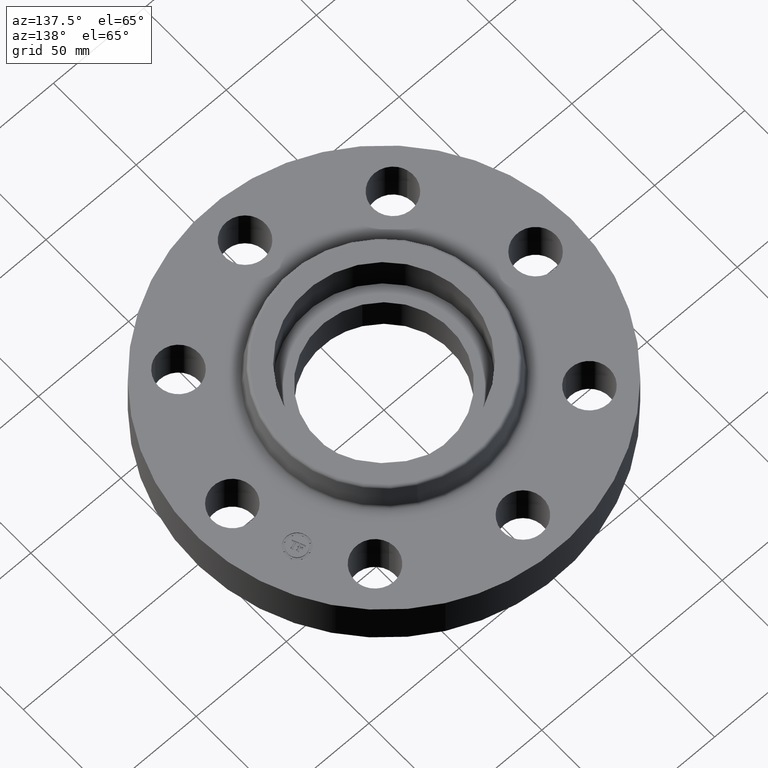
[diagram: clean part render]
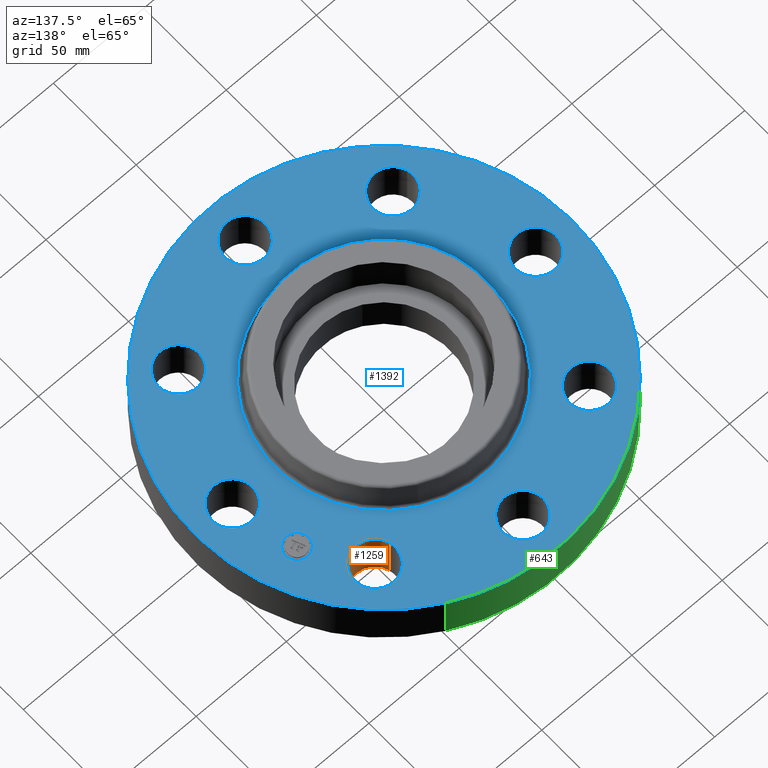
[diagram: same view with three faces highlighted in distinct colors, each labeled with its STEP entity id]
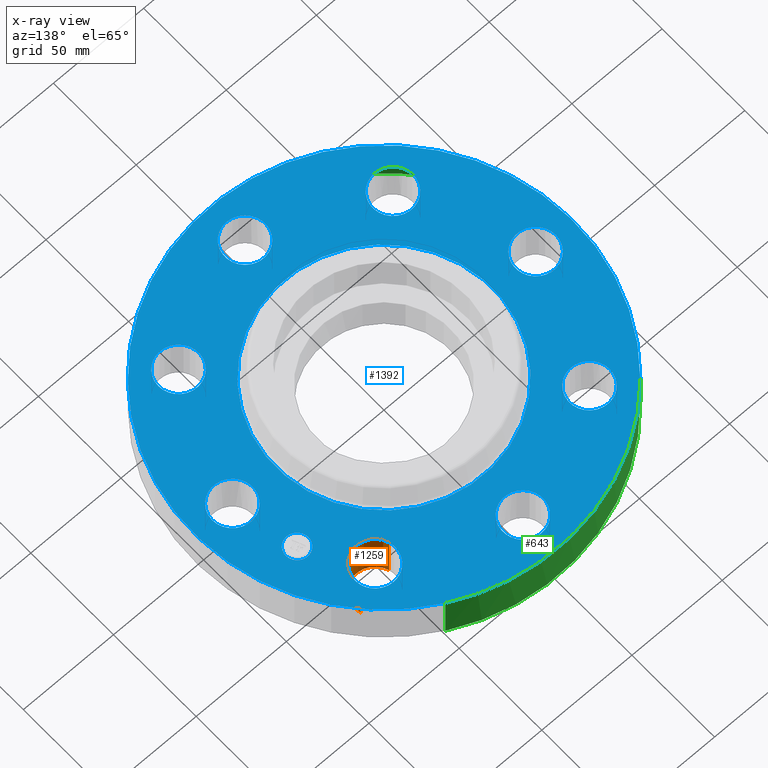
[diagram: x-ray of the same camera — body ghosted, the three highlighted faces saturated]
A machine part, auxiliary view with three faces highlighted in distinct colors.
The next image is the same camera in x-ray (body ghosted, the three faces saturated) — at least one of them is partly hidden behind the body in this view.
Their STEP definitions:

[orange] entity #1259 — the highlighted cylindrical surface (edge-blend (fillet) strip) has radius 11.176 mm, axis along (-0, 0, -1).
#524=AXIS2_PLACEMENT_3D('Circle Axis2P3D',#522,#523,$) ;
#1246=AXIS2_PLACEMENT_3D('Cylinder Axis2P3D',#1243,#1244,#1245) ;
#1250=AXIS2_PLACEMENT_3D('Circle Axis2P3D',#1248,#1249,$) ;
#517=CARTESIAN_POINT('Vertex',(1.91832160856,2.21664605201,0.)) ;
#519=CARTESIAN_POINT('Vertex',(2.76272528292,2.46440083948,0.)) ;
#522=CARTESIAN_POINT('Axis2P3D Location',(2.34052344574,2.34052344574,0.)) ;
#1198=CARTESIAN_POINT('Line Origine',(1.91832160854,2.21664605204,0.529999999983)) ;
#1202=CARTESIAN_POINT('Vertex',(1.91832160855,2.21664605203,1.05999999999)) ;
#1205=CARTESIAN_POINT('Line Origine',(2.76272528294,2.46440083944,0.529999999983)) ;
#1209=CARTESIAN_POINT('Vertex',(2.76272528294,2.46440083944,1.05999999999)) ;
#1243=CARTESIAN_POINT('Axis2P3D Location',(2.34052344574,2.34052344574,1.05606299213)) ;
#1248=CARTESIAN_POINT('Axis2P3D Location',(2.34052344574,2.34052344574,1.05999999999)) ;
#523=DIRECTION('Axis2P3D Direction',(0.,0.,-0.0393700787402)) ;
#1199=DIRECTION('Vector Direction',(0.,0.,-0.0393700787402)) ;
#1206=DIRECTION('Vector Direction',(0.,0.,-0.0393700787402)) ;
#1244=DIRECTION('Axis2P3D Direction',(-0.,0.,-0.0393700787402)) ;
#1245=DIRECTION('Axis2P3D XDirection',(0.0377775444876,0.0110842335096,0.)) ;
#1249=DIRECTION('Axis2P3D Direction',(-0.,0.,-0.0393700787402)) ;
#1200=VECTOR('Line Direction',#1199,0.0393700787402) ;
#1207=VECTOR('Line Direction',#1206,0.0393700787402) ;
#1254=ORIENTED_EDGE('',*,*,#1211,.F.) ;
#1255=ORIENTED_EDGE('',*,*,#526,.T.) ;
#1256=ORIENTED_EDGE('',*,*,#1204,.T.) ;
#1257=ORIENTED_EDGE('',*,*,#1252,.F.) ;
#1259=ADVANCED_FACE('PartBody',(#1258),#1247,.F.) ;
#525=CIRCLE('generated circle',#524,0.439999999995) ;
#1251=CIRCLE('generated circle',#1250,0.440000000002) ;
#1247=CYLINDRICAL_SURFACE('generated cylinder',#1246,0.440000000002) ;
#526=EDGE_CURVE('',#520,#518,#525,.T.) ;
#1204=EDGE_CURVE('',#518,#1203,#1201,.F.) ;
#1211=EDGE_CURVE('',#520,#1210,#1208,.F.) ;
#1252=EDGE_CURVE('',#1210,#1203,#1251,.T.) ;
#1253=EDGE_LOOP('',(#1254,#1255,#1256,#1257)) ;
#1258=FACE_OUTER_BOUND('',#1253,.T.) ;
#1201=LINE('Line',#1198,#1200) ;
#1208=LINE('Line',#1205,#1207) ;
#518=VERTEX_POINT('',#517) ;
#520=VERTEX_POINT('',#519) ;
#1203=VERTEX_POINT('',#1202) ;
#1210=VERTEX_POINT('',#1209) ;

[blue] entity #1392 — the highlighted planar face has unit normal (0, 0, -1).
#658=AXIS2_PLACEMENT_3D('Circle Axis2P3D',#656,#657,$) ;
#732=AXIS2_PLACEMENT_3D('Circle Axis2P3D',#730,#731,$) ;
#806=AXIS2_PLACEMENT_3D('Circle Axis2P3D',#804,#805,$) ;
#844=AXIS2_PLACEMENT_3D('Circle Axis2P3D',#842,#843,$) ;
#954=AXIS2_PLACEMENT_3D('Circle Axis2P3D',#952,#953,$) ;
#992=AXIS2_PLACEMENT_3D('Circle Axis2P3D',#990,#991,$) ;
#1102=AXIS2_PLACEMENT_3D('Circle Axis2P3D',#1100,#1101,$) ;
#1140=AXIS2_PLACEMENT_3D('Circle Axis2P3D',#1138,#1139,$) ;
#1250=AXIS2_PLACEMENT_3D('Circle Axis2P3D',#1248,#1249,$) ;
#1274=AXIS2_PLACEMENT_3D('Circle Axis2P3D',#1272,#1273,$) ;
#1312=AXIS2_PLACEMENT_3D('Circle Axis2P3D',#1310,#1311,$) ;
#1332=AXIS2_PLACEMENT_3D('Plane Axis2P3D',#1329,#1330,#1331) ;
#1376=AXIS2_PLACEMENT_3D('Circle Axis2P3D',#1374,#1375,$) ;
#1385=AXIS2_PLACEMENT_3D('Circle Axis2P3D',#1383,#1384,$) ;
#610=CARTESIAN_POINT('Vertex',(-1.97763034675,-3.62002806781,1.05999999998)) ;
#614=CARTESIAN_POINT('Control Point',(-1.97763034675,-3.62002806781,1.06)) ;
#615=CARTESIAN_POINT('Control Point',(-2.54626302594,-3.30938261937,1.06)) ;
#616=CARTESIAN_POINT('Control Point',(-3.05390061395,-2.88708640546,1.06)) ;
#617=CARTESIAN_POINT('Control Point',(-3.47121412711,-2.36901864835,1.06)) ;
#618=CARTESIAN_POINT('Control Point',(-4.08022127968,-1.19716953677,1.05999999999)) ;
#619=CARTESIAN_POINT('Control Point',(-4.20091220836,0.117955458021,1.05999999999)) ;
#620=CARTESIAN_POINT('Control Point',(-4.12966819923,0.779369897221,1.05999999999)) ;
#621=CARTESIAN_POINT('Control Point',(-3.73167883328,2.03862543792,1.05999999999)) ;
#622=CARTESIAN_POINT('Control Point',(-2.88708640546,3.05390061395,1.05999999999)) ;
#623=CARTESIAN_POINT('Control Point',(-2.36901864835,3.47121412711,1.05999999998)) ;
#624=CARTESIAN_POINT('Control Point',(-1.19716953677,4.08022127968,1.05999999998)) ;
#625=CARTESIAN_POINT('Control Point',(0.117955458021,4.20091220836,1.05999999998)) ;
#626=CARTESIAN_POINT('Control Point',(0.77936989722,4.12966819923,1.05999999998)) ;
#627=CARTESIAN_POINT('Control Point',(1.40899766757,3.93067351626,1.05999999998)) ;
#628=CARTESIAN_POINT('Control Point',(1.97763034675,3.62002806781,1.05999999998)) ;
#629=CARTESIAN_POINT('Vertex',(1.97763034678,3.62002806783,1.06)) ;
#656=CARTESIAN_POINT('Axis2P3D Location',(0.,0.,1.05999999998)) ;
#684=CARTESIAN_POINT('Vertex',(3.69613632724,-0.210947236984,1.05999999999)) ;
#691=CARTESIAN_POINT('Vertex',(2.92386367278,0.210947236987,1.05999999999)) ;
#695=CARTESIAN_POINT('Control Point',(3.69613632724,-0.210947236987,1.05999999999)) ;
#696=CARTESIAN_POINT('Control Point',(3.66300081274,-0.271601389433,1.05999999999)) ;
#697=CARTESIAN_POINT('Control Point',(3.61795588326,-0.325749398821,1.05999999999)) ;
#698=CARTESIAN_POINT('Control Point',(3.5626953225,-0.370262840224,1.05999999999)) ;
#699=CARTESIAN_POINT('Control Point',(3.43769808393,-0.435223603166,1.05999999999)) ;
#700=CARTESIAN_POINT('Control Point',(3.29741808449,-0.448097302225,1.05999999999)) ;
#701=CARTESIAN_POINT('Control Point',(3.22686721097,-0.440497941251,1.05999999999)) ;
#702=CARTESIAN_POINT('Control Point',(3.09254661997,-0.398045742217,1.05999999999)) ;
#703=CARTESIAN_POINT('Control Point',(2.98425060119,-0.307955883249,1.06)) ;
#704=CARTESIAN_POINT('Control Point',(2.93973715979,-0.252695322491,1.06)) ;
#705=CARTESIAN_POINT('Control Point',(2.87477639684,-0.127698083922,1.06)) ;
#706=CARTESIAN_POINT('Control Point',(2.86190269778,0.0125819155223,1.06)) ;
#707=CARTESIAN_POINT('Control Point',(2.86950205876,0.0831327890369,1.06)) ;
#708=CARTESIAN_POINT('Control Point',(2.89072815828,0.150293084541,1.06)) ;
#709=CARTESIAN_POINT('Control Point',(2.92386367278,0.210947236987,1.06)) ;
#730=CARTESIAN_POINT('Axis2P3D Location',(3.31000000001,0.,1.05999999999)) ;
#758=CARTESIAN_POINT('Vertex',(2.21664605203,-1.91832160855,1.05999999999)) ;
#765=CARTESIAN_POINT('Vertex',(2.46440083944,-2.76272528294,1.05999999999)) ;
#769=CARTESIAN_POINT('Control Point',(2.21664605204,-1.91832160854,1.05999999999)) ;
#770=CARTESIAN_POINT('Control Point',(2.28296536154,-1.89886299304,1.05999999999)) ;
#771=CARTESIAN_POINT('Control Point',(2.35310536126,-1.89242614351,1.05999999999)) ;
#772=CARTESIAN_POINT('Control Point',(2.42365623478,-1.90002550449,1.05999999999)) ;
#773=CARTESIAN_POINT('Control Point',(2.55797682578,-1.94247770352,1.05999999999)) ;
#774=CARTESIAN_POINT('Control Point',(2.66627284456,-2.03256756249,1.05999999999)) ;
#775=CARTESIAN_POINT('Control Point',(2.71078628596,-2.08782812325,1.05999999999)) ;
#776=CARTESIAN_POINT('Control Point',(2.77574704891,-2.21282536182,1.05999999999)) ;
#777=CARTESIAN_POINT('Control Point',(2.78862074797,-2.35310536126,1.06)) ;
#778=CARTESIAN_POINT('Control Point',(2.78102138699,-2.42365623478,1.06)) ;
#779=CARTESIAN_POINT('Control Point',(2.73856918796,-2.55797682578,1.06)) ;
#780=CARTESIAN_POINT('Control Point',(2.64847932899,-2.66627284456,1.06)) ;
#781=CARTESIAN_POINT('Control Point',(2.59321876823,-2.71078628596,1.06)) ;
#782=CARTESIAN_POINT('Control Point',(2.53072014895,-2.74326666743,1.06)) ;
#783=CARTESIAN_POINT('Control Point',(2.46440083944,-2.76272528294,1.06)) ;
#804=CARTESIAN_POINT('Axis2P3D Location',(2.34052344574,-2.34052344574,1.05999999999)) ;
#832=CARTESIAN_POINT('Vertex',(0.210947237,-2.92386367279,1.06)) ;
#839=CARTESIAN_POINT('Vertex',(-0.210947236987,-3.69613632724,1.05999999999)) ;
#842=CARTESIAN_POINT('Axis2P3D Location',(-3.56803423843E-016,-3.31000000001,1.05999999999)) ;
#867=CARTESIAN_POINT('Control Point',(-0.210947236987,-3.69613632724,1.06)) ;
#868=CARTESIAN_POINT('Control Point',(-0.271601389433,-3.66300081274,1.06)) ;
#869=CARTESIAN_POINT('Control Point',(-0.325749398821,-3.61795588326,1.06)) ;
#870=CARTESIAN_POINT('Control Point',(-0.370262840224,-3.5626953225,1.06)) ;
#871=CARTESIAN_POINT('Control Point',(-0.435223603166,-3.43769808393,1.06)) ;
#872=CARTESIAN_POINT('Control Point',(-0.448097302225,-3.29741808449,1.06)) ;
#873=CARTESIAN_POINT('Control Point',(-0.440497941251,-3.22686721097,1.06)) ;
#874=CARTESIAN_POINT('Control Point',(-0.398045742217,-3.09254661997,1.05999999999)) ;
#875=CARTESIAN_POINT('Control Point',(-0.307955883249,-2.98425060119,1.05999999999)) ;
#876=CARTESIAN_POINT('Control Point',(-0.252695322491,-2.93973715979,1.05999999999)) ;
#877=CARTESIAN_POINT('Control Point',(-0.127698083922,-2.87477639684,1.05999999999)) ;
#878=CARTESIAN_POINT('Control Point',(0.0125819155223,-2.86190269778,1.05999999999)) ;
#879=CARTESIAN_POINT('Control Point',(0.0831327890369,-2.86950205876,1.05999999999)) ;
#880=CARTESIAN_POINT('Control Point',(0.150293084541,-2.89072815828,1.05999999999)) ;
#881=CARTESIAN_POINT('Control Point',(0.210947236987,-2.92386367278,1.05999999999)) ;
#906=CARTESIAN_POINT('Vertex',(-1.91832160855,-2.21664605203,1.05999999999)) ;
#913=CARTESIAN_POINT('Vertex',(-2.76272528294,-2.46440083944,1.05999999999)) ;
#917=CARTESIAN_POINT('Control Point',(-1.91832160854,-2.21664605204,1.05999999999)) ;
#918=CARTESIAN_POINT('Control Point',(-1.89886299304,-2.28296536154,1.05999999999)) ;
#919=CARTESIAN_POINT('Control Point',(-1.89242614351,-2.35310536126,1.05999999999)) ;
#920=CARTESIAN_POINT('Control Point',(-1.90002550449,-2.42365623478,1.05999999999)) ;
#921=CARTESIAN_POINT('Control Point',(-1.94247770352,-2.55797682578,1.05999999999)) ;
#922=CARTESIAN_POINT('Control Point',(-2.03256756249,-2.66627284456,1.05999999999)) ;
#923=CARTESIAN_POINT('Control Point',(-2.08782812325,-2.71078628596,1.05999999999)) ;
#924=CARTESIAN_POINT('Control Point',(-2.21282536182,-2.77574704891,1.05999999999)) ;
#925=CARTESIAN_POINT('Control Point',(-2.35310536126,-2.78862074797,1.06)) ;
#926=CARTESIAN_POINT('Control Point',(-2.42365623478,-2.78102138699,1.06)) ;
#927=CARTESIAN_POINT('Control Point',(-2.55797682578,-2.73856918796,1.06)) ;
#928=CARTESIAN_POINT('Control Point',(-2.66627284456,-2.64847932899,1.06)) ;
#929=CARTESIAN_POINT('Control Point',(-2.71078628596,-2.59321876823,1.06)) ;
#930=CARTESIAN_POINT('Control Point',(-2.74326666743,-2.53072014895,1.06)) ;
#931=CARTESIAN_POINT('Control Point',(-2.76272528294,-2.46440083944,1.06)) ;
#952=CARTESIAN_POINT('Axis2P3D Location',(-2.34052344574,-2.34052344574,1.05999999999)) ;
#980=CARTESIAN_POINT('Vertex',(-2.92386367279,-0.210947236994,1.06)) ;
#987=CARTESIAN_POINT('Vertex',(-3.69613632724,0.210947236987,1.05999999999)) ;
#990=CARTESIAN_POINT('Axis2P3D Location',(-3.31000000001,-4.05358090519E-016,1.05999999999)) ;
#1015=CARTESIAN_POINT('Control Point',(-3.69613632724,0.210947236987,1.06)) ;
#1016=CARTESIAN_POINT('Control Point',(-3.66300081274,0.271601389433,1.06)) ;
#1017=CARTESIAN_POINT('Control Point',(-3.61795588326,0.325749398821,1.06)) ;
#1018=CARTESIAN_POINT('Control Point',(-3.5626953225,0.370262840224,1.06)) ;
#1019=CARTESIAN_POINT('Control Point',(-3.43769808393,0.435223603166,1.06)) ;
#1020=CARTESIAN_POINT('Control Point',(-3.29741808449,0.448097302225,1.06)) ;
#1021=CARTESIAN_POINT('Control Point',(-3.22686721097,0.440497941251,1.06)) ;
#1022=CARTESIAN_POINT('Control Point',(-3.09254661997,0.398045742217,1.05999999999)) ;
#1023=CARTESIAN_POINT('Control Point',(-2.98425060119,0.307955883249,1.05999999999)) ;
#1024=CARTESIAN_POINT('Control Point',(-2.93973715979,0.252695322491,1.05999999999)) ;
#1025=CARTESIAN_POINT('Control Point',(-2.87477639684,0.127698083922,1.05999999999)) ;
#1026=CARTESIAN_POINT('Control Point',(-2.86190269778,-0.0125819155223,1.05999999999)) ;
#1027=CARTESIAN_POINT('Control Point',(-2.86950205876,-0.0831327890369,1.05999999999)) ;
#1028=CARTESIAN_POINT('Control Point',(-2.89072815828,-0.150293084541,1.05999999999)) ;
#1029=CARTESIAN_POINT('Control Point',(-2.92386367278,-0.210947236987,1.05999999999)) ;
#1054=CARTESIAN_POINT('Vertex',(-2.21664605203,1.91832160855,1.05999999999)) ;
#1061=CARTESIAN_POINT('Vertex',(-2.46440083944,2.76272528294,1.05999999999)) ;
#1065=CARTESIAN_POINT('Control Point',(-2.21664605204,1.91832160854,1.05999999999)) ;
#1066=CARTESIAN_POINT('Control Point',(-2.28296536154,1.89886299304,1.05999999999)) ;
#1067=CARTESIAN_POINT('Control Point',(-2.35310536126,1.89242614351,1.05999999999)) ;
#1068=CARTESIAN_POINT('Control Point',(-2.42365623478,1.90002550449,1.05999999999)) ;
#1069=CARTESIAN_POINT('Control Point',(-2.55797682578,1.94247770352,1.05999999999)) ;
#1070=CARTESIAN_POINT('Control Point',(-2.66627284456,2.03256756249,1.05999999999)) ;
#1071=CARTESIAN_POINT('Control Point',(-2.71078628596,2.08782812325,1.05999999999)) ;
#1072=CARTESIAN_POINT('Control Point',(-2.77574704891,2.21282536182,1.05999999999)) ;
#1073=CARTESIAN_POINT('Control Point',(-2.78862074797,2.35310536126,1.06)) ;
#1074=CARTESIAN_POINT('Control Point',(-2.78102138699,2.42365623478,1.06)) ;
#1075=CARTESIAN_POINT('Control Point',(-2.73856918796,2.55797682578,1.06)) ;
#1076=CARTESIAN_POINT('Control Point',(-2.64847932899,2.66627284456,1.06)) ;
#1077=CARTESIAN_POINT('Control Point',(-2.59321876823,2.71078628596,1.06)) ;
#1078=CARTESIAN_POINT('Control Point',(-2.53072014895,2.74326666743,1.06)) ;
#1079=CARTESIAN_POINT('Control Point',(-2.46440083944,2.76272528294,1.06)) ;
#1100=CARTESIAN_POINT('Axis2P3D Location',(-2.34052344574,2.34052344574,1.05999999999)) ;
#1128=CARTESIAN_POINT('Vertex',(-0.210947237,2.9238636728,1.06)) ;
#1135=CARTESIAN_POINT('Vertex',(0.210947236987,3.69613632724,1.05999999999)) ;
#1138=CARTESIAN_POINT('Axis2P3D Location',(-6.08037135779E-016,3.31000000001,1.05999999999)) ;
#1163=CARTESIAN_POINT('Control Point',(0.210947236987,3.69613632724,1.06)) ;
#1164=CARTESIAN_POINT('Control Point',(0.271601389433,3.66300081274,1.06)) ;
#1165=CARTESIAN_POINT('Control Point',(0.325749398821,3.61795588326,1.06)) ;
#1166=CARTESIAN_POINT('Control Point',(0.370262840224,3.5626953225,1.06)) ;
#1167=CARTESIAN_POINT('Control Point',(0.435223603166,3.43769808393,1.06)) ;
#1168=CARTESIAN_POINT('Control Point',(0.448097302225,3.29741808449,1.06)) ;
#1169=CARTESIAN_POINT('Control Point',(0.440497941251,3.22686721097,1.06)) ;
#1170=CARTESIAN_POINT('Control Point',(0.398045742217,3.09254661997,1.05999999999)) ;
#1171=CARTESIAN_POINT('Control Point',(0.307955883249,2.98425060119,1.05999999999)) ;
#1172=CARTESIAN_POINT('Control Point',(0.252695322491,2.93973715979,1.05999999999)) ;
#1173=CARTESIAN_POINT('Control Point',(0.127698083922,2.87477639684,1.05999999999)) ;
#1174=CARTESIAN_POINT('Control Point',(-0.0125819155223,2.86190269778,1.05999999999)) ;
#1175=CARTESIAN_POINT('Control Point',(-0.0831327890369,2.86950205876,1.05999999999)) ;
#1176=CARTESIAN_POINT('Control Point',(-0.150293084541,2.89072815828,1.05999999999)) ;
#1177=CARTESIAN_POINT('Control Point',(-0.210947236987,2.92386367278,1.05999999999)) ;
#1202=CARTESIAN_POINT('Vertex',(1.91832160855,2.21664605203,1.05999999999)) ;
#1209=CARTESIAN_POINT('Vertex',(2.76272528294,2.46440083944,1.05999999999)) ;
#1213=CARTESIAN_POINT('Control Point',(1.91832160854,2.21664605204,1.05999999999)) ;
#1214=CARTESIAN_POINT('Control Point',(1.89886299304,2.28296536154,1.05999999999)) ;
#1215=CARTESIAN_POINT('Control Point',(1.89242614351,2.35310536126,1.05999999999)) ;
#1216=CARTESIAN_POINT('Control Point',(1.90002550449,2.42365623478,1.05999999999)) ;
#1217=CARTESIAN_POINT('Control Point',(1.94247770352,2.55797682578,1.05999999999)) ;
#1218=CARTESIAN_POINT('Control Point',(2.03256756249,2.66627284456,1.05999999999)) ;
#1219=CARTESIAN_POINT('Control Point',(2.08782812325,2.71078628596,1.05999999999)) ;
#1220=CARTESIAN_POINT('Control Point',(2.21282536182,2.77574704891,1.05999999999)) ;
#1221=CARTESIAN_POINT('Control Point',(2.35310536126,2.78862074797,1.06)) ;
#1222=CARTESIAN_POINT('Control Point',(2.42365623478,2.78102138699,1.06)) ;
#1223=CARTESIAN_POINT('Control Point',(2.55797682578,2.73856918796,1.06)) ;
#1224=CARTESIAN_POINT('Control Point',(2.66627284456,2.64847932899,1.06)) ;
#1225=CARTESIAN_POINT('Control Point',(2.71078628596,2.59321876823,1.06)) ;
#1226=CARTESIAN_POINT('Control Point',(2.74326666743,2.53072014895,1.06)) ;
#1227=CARTESIAN_POINT('Control Point',(2.76272528294,2.46440083944,1.06)) ;
#1248=CARTESIAN_POINT('Axis2P3D Location',(2.34052344574,2.34052344574,1.05999999999)) ;
#1272=CARTESIAN_POINT('Axis2P3D Location',(0.,0.,1.06)) ;
#1276=CARTESIAN_POINT('Vertex',(1.13161014174,2.07139847022,1.06)) ;
#1278=CARTESIAN_POINT('Vertex',(-1.13161014174,-2.07139847022,1.06)) ;
#1310=CARTESIAN_POINT('Axis2P3D Location',(0.,0.,1.06)) ;
#1329=CARTESIAN_POINT('Axis2P3D Location',(0.,4.12500000002,1.06)) ;
#1374=CARTESIAN_POINT('Axis2P3D Location',(3.05804125264,1.26668216115,1.06)) ;
#1378=CARTESIAN_POINT('Vertex',(2.96332710313,1.49534234543,1.06)) ;
#1380=CARTESIAN_POINT('Vertex',(3.15275540216,1.03802197687,1.06)) ;
#1383=CARTESIAN_POINT('Axis2P3D Location',(3.05804125258,1.26668216112,1.06)) ;
#657=DIRECTION('Axis2P3D Direction',(0.,0.,-0.0393700787402)) ;
#731=DIRECTION('Axis2P3D Direction',(0.,-0.,-0.0393700787402)) ;
#805=DIRECTION('Axis2P3D Direction',(0.,0.,-0.0393700787402)) ;
#843=DIRECTION('Axis2P3D Direction',(0.,0.,-0.0393700787402)) ;
#953=DIRECTION('Axis2P3D Direction',(-0.,0.,-0.0393700787402)) ;
#991=DIRECTION('Axis2P3D Direction',(0.,-0.,-0.0393700787402)) ;
#1101=DIRECTION('Axis2P3D Direction',(0.,0.,-0.0393700787402)) ;
#1139=DIRECTION('Axis2P3D Direction',(-0.,0.,-0.0393700787402)) ;
#1249=DIRECTION('Axis2P3D Direction',(-0.,0.,-0.0393700787402)) ;
#1273=DIRECTION('Axis2P3D Direction',(-0.,0.,-0.0393700787402)) ;
#1311=DIRECTION('Axis2P3D Direction',(-0.,0.,-0.0393700787402)) ;
#1330=DIRECTION('Axis2P3D Direction',(0.,0.,-0.0393700787402)) ;
#1331=DIRECTION('Axis2P3D XDirection',(0.0393700787402,0.,0.)) ;
#1375=DIRECTION('Axis2P3D Direction',(0.,0.,-0.0393700787402)) ;
#1384=DIRECTION('Axis2P3D Direction',(0.,0.,-0.0393700787402)) ;
#1335=ORIENTED_EDGE('',*,*,#660,.F.) ;
#1336=ORIENTED_EDGE('',*,*,#631,.F.) ;
#1339=ORIENTED_EDGE('',*,*,#734,.T.) ;
#1340=ORIENTED_EDGE('',*,*,#710,.T.) ;
#1343=ORIENTED_EDGE('',*,*,#1314,.T.) ;
#1344=ORIENTED_EDGE('',*,*,#1280,.T.) ;
#1347=ORIENTED_EDGE('',*,*,#808,.T.) ;
#1348=ORIENTED_EDGE('',*,*,#784,.T.) ;
#1351=ORIENTED_EDGE('',*,*,#882,.T.) ;
#1352=ORIENTED_EDGE('',*,*,#846,.T.) ;
#1355=ORIENTED_EDGE('',*,*,#956,.T.) ;
#1356=ORIENTED_EDGE('',*,*,#932,.T.) ;
#1359=ORIENTED_EDGE('',*,*,#1030,.T.) ;
#1360=ORIENTED_EDGE('',*,*,#994,.T.) ;
#1363=ORIENTED_EDGE('',*,*,#1104,.T.) ;
#1364=ORIENTED_EDGE('',*,*,#1080,.T.) ;
#1367=ORIENTED_EDGE('',*,*,#1178,.T.) ;
#1368=ORIENTED_EDGE('',*,*,#1142,.T.) ;
#1371=ORIENTED_EDGE('',*,*,#1252,.T.) ;
#1372=ORIENTED_EDGE('',*,*,#1228,.T.) ;
#1389=ORIENTED_EDGE('',*,*,#1382,.T.) ;
#1390=ORIENTED_EDGE('',*,*,#1387,.T.) ;
#1341=FACE_BOUND('',#1338,.T.) ;
#1345=FACE_BOUND('',#1342,.T.) ;
#1349=FACE_BOUND('',#1346,.T.) ;
#1353=FACE_BOUND('',#1350,.T.) ;
#1357=FACE_BOUND('',#1354,.T.) ;
#1361=FACE_BOUND('',#1358,.T.) ;
#1365=FACE_BOUND('',#1362,.T.) ;
#1369=FACE_BOUND('',#1366,.T.) ;
#1373=FACE_BOUND('',#1370,.T.) ;
#1391=FACE_BOUND('',#1388,.T.) ;
#1392=ADVANCED_FACE('PartBody',(#1337,#1341,#1345,#1349,#1353,#1357,#1361,#1365,#1369,#1373,#1391),#1333,.F.) ;
#613=B_SPLINE_CURVE_WITH_KNOTS('',5,(#614,#615,#616,#617,#618,#619,#620,#621,#622,#623,#624,#625,#626,#627,#628),.UNSPECIFIED.,.F.,.U.,(6,3,3,3,6),(-164.580185141,-82.2900925704,0.,82.2900925704,164.580185141),.UNSPECIFIED.) ;
#694=B_SPLINE_CURVE_WITH_KNOTS('',5,(#695,#696,#697,#698,#699,#700,#701,#702,#703,#704,#705,#706,#707,#708,#709),.UNSPECIFIED.,.F.,.U.,(6,3,3,3,6),(-17.5552197483,-8.77760987417,0.,8.77760987417,17.5552197483),.UNSPECIFIED.) ;
#768=B_SPLINE_CURVE_WITH_KNOTS('',5,(#769,#770,#771,#772,#773,#774,#775,#776,#777,#778,#779,#780,#781,#782,#783),.UNSPECIFIED.,.F.,.U.,(6,3,3,3,6),(-17.5552197483,-8.77760987417,0.,8.77760987417,17.5552197483),.UNSPECIFIED.) ;
#866=B_SPLINE_CURVE_WITH_KNOTS('',5,(#867,#868,#869,#870,#871,#872,#873,#874,#875,#876,#877,#878,#879,#880,#881),.UNSPECIFIED.,.F.,.U.,(6,3,3,3,6),(-17.5552197483,-8.77760987417,0.,8.77760987417,17.5552197483),.UNSPECIFIED.) ;
#916=B_SPLINE_CURVE_WITH_KNOTS('',5,(#917,#918,#919,#920,#921,#922,#923,#924,#925,#926,#927,#928,#929,#930,#931),.UNSPECIFIED.,.F.,.U.,(6,3,3,3,6),(-17.5552197483,-8.77760987417,0.,8.77760987417,17.5552197483),.UNSPECIFIED.) ;
#1014=B_SPLINE_CURVE_WITH_KNOTS('',5,(#1015,#1016,#1017,#1018,#1019,#1020,#1021,#1022,#1023,#1024,#1025,#1026,#1027,#1028,#1029),.UNSPECIFIED.,.F.,.U.,(6,3,3,3,6),(-17.5552197483,-8.77760987417,0.,8.77760987417,17.5552197483),.UNSPECIFIED.) ;
#1064=B_SPLINE_CURVE_WITH_KNOTS('',5,(#1065,#1066,#1067,#1068,#1069,#1070,#1071,#1072,#1073,#1074,#1075,#1076,#1077,#1078,#1079),.UNSPECIFIED.,.F.,.U.,(6,3,3,3,6),(-17.5552197483,-8.77760987417,0.,8.77760987417,17.5552197483),.UNSPECIFIED.) ;
#1162=B_SPLINE_CURVE_WITH_KNOTS('',5,(#1163,#1164,#1165,#1166,#1167,#1168,#1169,#1170,#1171,#1172,#1173,#1174,#1175,#1176,#1177),.UNSPECIFIED.,.F.,.U.,(6,3,3,3,6),(-17.5552197483,-8.77760987417,0.,8.77760987417,17.5552197483),.UNSPECIFIED.) ;
#1212=B_SPLINE_CURVE_WITH_KNOTS('',5,(#1213,#1214,#1215,#1216,#1217,#1218,#1219,#1220,#1221,#1222,#1223,#1224,#1225,#1226,#1227),.UNSPECIFIED.,.F.,.U.,(6,3,3,3,6),(-17.5552197483,-8.77760987417,0.,8.77760987417,17.5552197483),.UNSPECIFIED.) ;
#659=CIRCLE('generated circle',#658,4.12500000002) ;
#733=CIRCLE('generated circle',#732,0.440000000002) ;
#807=CIRCLE('generated circle',#806,0.440000000002) ;
#845=CIRCLE('generated circle',#844,0.440000000002) ;
#955=CIRCLE('generated circle',#954,0.440000000002) ;
#993=CIRCLE('generated circle',#992,0.440000000002) ;
#1103=CIRCLE('generated circle',#1102,0.440000000002) ;
#1141=CIRCLE('generated circle',#1140,0.440000000002) ;
#1251=CIRCLE('generated circle',#1250,0.440000000002) ;
#1275=CIRCLE('generated circle',#1274,2.36034597788) ;
#1313=CIRCLE('generated circle',#1312,2.36034597788) ;
#1377=CIRCLE('generated circle',#1376,0.247499999989) ;
#1386=CIRCLE('generated circle',#1385,0.247499999989) ;
#631=EDGE_CURVE('',#611,#630,#613,.T.) ;
#660=EDGE_CURVE('',#630,#611,#659,.T.) ;
#710=EDGE_CURVE('',#685,#692,#694,.T.) ;
#734=EDGE_CURVE('',#692,#685,#733,.T.) ;
#784=EDGE_CURVE('',#759,#766,#768,.T.) ;
#808=EDGE_CURVE('',#766,#759,#807,.T.) ;
#846=EDGE_CURVE('',#833,#840,#845,.T.) ;
#882=EDGE_CURVE('',#840,#833,#866,.T.) ;
#932=EDGE_CURVE('',#907,#914,#916,.T.) ;
#956=EDGE_CURVE('',#914,#907,#955,.T.) ;
#994=EDGE_CURVE('',#981,#988,#993,.T.) ;
#1030=EDGE_CURVE('',#988,#981,#1014,.T.) ;
#1080=EDGE_CURVE('',#1055,#1062,#1064,.T.) ;
#1104=EDGE_CURVE('',#1062,#1055,#1103,.T.) ;
#1142=EDGE_CURVE('',#1129,#1136,#1141,.T.) ;
#1178=EDGE_CURVE('',#1136,#1129,#1162,.T.) ;
#1228=EDGE_CURVE('',#1203,#1210,#1212,.T.) ;
#1252=EDGE_CURVE('',#1210,#1203,#1251,.T.) ;
#1280=EDGE_CURVE('',#1277,#1279,#1275,.T.) ;
#1314=EDGE_CURVE('',#1279,#1277,#1313,.T.) ;
#1382=EDGE_CURVE('',#1379,#1381,#1377,.T.) ;
#1387=EDGE_CURVE('',#1381,#1379,#1386,.T.) ;
#1334=EDGE_LOOP('',(#1335,#1336)) ;
#1338=EDGE_LOOP('',(#1339,#1340)) ;
#1342=EDGE_LOOP('',(#1343,#1344)) ;
#1346=EDGE_LOOP('',(#1347,#1348)) ;
#1350=EDGE_LOOP('',(#1351,#1352)) ;
#1354=EDGE_LOOP('',(#1355,#1356)) ;
#1358=EDGE_LOOP('',(#1359,#1360)) ;
#1362=EDGE_LOOP('',(#1363,#1364)) ;
#1366=EDGE_LOOP('',(#1367,#1368)) ;
#1370=EDGE_LOOP('',(#1371,#1372)) ;
#1388=EDGE_LOOP('',(#1389,#1390)) ;
#1337=FACE_OUTER_BOUND('',#1334,.T.) ;
#1333=PLANE('',#1332) ;
#611=VERTEX_POINT('',#610) ;
#630=VERTEX_POINT('',#629) ;
#685=VERTEX_POINT('',#684) ;
#692=VERTEX_POINT('',#691) ;
#759=VERTEX_POINT('',#758) ;
#766=VERTEX_POINT('',#765) ;
#833=VERTEX_POINT('',#832) ;
#840=VERTEX_POINT('',#839) ;
#907=VERTEX_POINT('',#906) ;
#914=VERTEX_POINT('',#913) ;
#981=VERTEX_POINT('',#980) ;
#988=VERTEX_POINT('',#987) ;
#1055=VERTEX_POINT('',#1054) ;
#1062=VERTEX_POINT('',#1061) ;
#1129=VERTEX_POINT('',#1128) ;
#1136=VERTEX_POINT('',#1135) ;
#1203=VERTEX_POINT('',#1202) ;
#1210=VERTEX_POINT('',#1209) ;
#1277=VERTEX_POINT('',#1276) ;
#1279=VERTEX_POINT('',#1278) ;
#1379=VERTEX_POINT('',#1378) ;
#1381=VERTEX_POINT('',#1380) ;

[green] entity #643 — the highlighted cylindrical surface (partial cylindrical patch) has radius 104.775 mm, axis along (0, 0, -1).
#367=AXIS2_PLACEMENT_3D('Circle Axis2P3D',#365,#366,$) ;
#604=AXIS2_PLACEMENT_3D('Cylinder Axis2P3D',#601,#602,#603) ;
#365=CARTESIAN_POINT('Axis2P3D Location',(1.1189649382E-015,7.0673825497E-012,0.)) ;
#369=CARTESIAN_POINT('Vertex',(-1.97763034678,-3.62002806781,0.)) ;
#371=CARTESIAN_POINT('Vertex',(1.97763034678,3.62002806783,0.)) ;
#601=CARTESIAN_POINT('Axis2P3D Location',(0.,0.,0.815000000003)) ;
#606=CARTESIAN_POINT('Line Origine',(-1.97763034675,-3.62002806781,0.53)) ;
#610=CARTESIAN_POINT('Vertex',(-1.97763034675,-3.62002806781,1.05999999998)) ;
#614=CARTESIAN_POINT('Control Point',(-1.97763034675,-3.62002806781,1.06)) ;
#615=CARTESIAN_POINT('Control Point',(-2.54626302594,-3.30938261937,1.06)) ;
#616=CARTESIAN_POINT('Control Point',(-3.05390061395,-2.88708640546,1.06)) ;
#617=CARTESIAN_POINT('Control Point',(-3.47121412711,-2.36901864835,1.06)) ;
#618=CARTESIAN_POINT('Control Point',(-4.08022127968,-1.19716953677,1.05999999999)) ;
#619=CARTESIAN_POINT('Control Point',(-4.20091220836,0.117955458021,1.05999999999)) ;
#620=CARTESIAN_POINT('Control Point',(-4.12966819923,0.779369897221,1.05999999999)) ;
#621=CARTESIAN_POINT('Control Point',(-3.73167883328,2.03862543792,1.05999999999)) ;
#622=CARTESIAN_POINT('Control Point',(-2.88708640546,3.05390061395,1.05999999999)) ;
#623=CARTESIAN_POINT('Control Point',(-2.36901864835,3.47121412711,1.05999999998)) ;
#624=CARTESIAN_POINT('Control Point',(-1.19716953677,4.08022127968,1.05999999998)) ;
#625=CARTESIAN_POINT('Control Point',(0.117955458021,4.20091220836,1.05999999998)) ;
#626=CARTESIAN_POINT('Control Point',(0.77936989722,4.12966819923,1.05999999998)) ;
#627=CARTESIAN_POINT('Control Point',(1.40899766757,3.93067351626,1.05999999998)) ;
#628=CARTESIAN_POINT('Control Point',(1.97763034675,3.62002806781,1.05999999998)) ;
#629=CARTESIAN_POINT('Vertex',(1.97763034678,3.62002806783,1.06)) ;
#632=CARTESIAN_POINT('Line Origine',(1.97763034675,3.62002806781,0.53)) ;
#366=DIRECTION('Axis2P3D Direction',(0.,0.,-0.0393700787402)) ;
#602=DIRECTION('Axis2P3D Direction',(0.,0.,-0.0393700787402)) ;
#603=DIRECTION('Axis2P3D XDirection',(-0.0188750212049,-0.0345504945626,0.)) ;
#607=DIRECTION('Vector Direction',(0.,0.,-0.0393700787402)) ;
#633=DIRECTION('Vector Direction',(0.,0.,-0.0393700787402)) ;
#608=VECTOR('Line Direction',#607,0.0393700787402) ;
#634=VECTOR('Line Direction',#633,0.0393700787402) ;
#638=ORIENTED_EDGE('',*,*,#373,.F.) ;
#639=ORIENTED_EDGE('',*,*,#612,.T.) ;
#640=ORIENTED_EDGE('',*,*,#631,.T.) ;
#641=ORIENTED_EDGE('',*,*,#636,.F.) ;
#643=ADVANCED_FACE('PartBody',(#642),#605,.T.) ;
#613=B_SPLINE_CURVE_WITH_KNOTS('',5,(#614,#615,#616,#617,#618,#619,#620,#621,#622,#623,#624,#625,#626,#627,#628),.UNSPECIFIED.,.F.,.U.,(6,3,3,3,6),(-164.580185141,-82.2900925704,0.,82.2900925704,164.580185141),.UNSPECIFIED.) ;
#368=CIRCLE('generated circle',#367,4.12500000004) ;
#605=CYLINDRICAL_SURFACE('generated cylinder',#604,4.12500000002) ;
#373=EDGE_CURVE('',#370,#372,#368,.T.) ;
#612=EDGE_CURVE('',#370,#611,#609,.F.) ;
#631=EDGE_CURVE('',#611,#630,#613,.T.) ;
#636=EDGE_CURVE('',#372,#630,#635,.F.) ;
#637=EDGE_LOOP('',(#638,#639,#640,#641)) ;
#642=FACE_OUTER_BOUND('',#637,.T.) ;
#609=LINE('Line',#606,#608) ;
#635=LINE('Line',#632,#634) ;
#370=VERTEX_POINT('',#369) ;
#372=VERTEX_POINT('',#371) ;
#611=VERTEX_POINT('',#610) ;
#630=VERTEX_POINT('',#629) ;